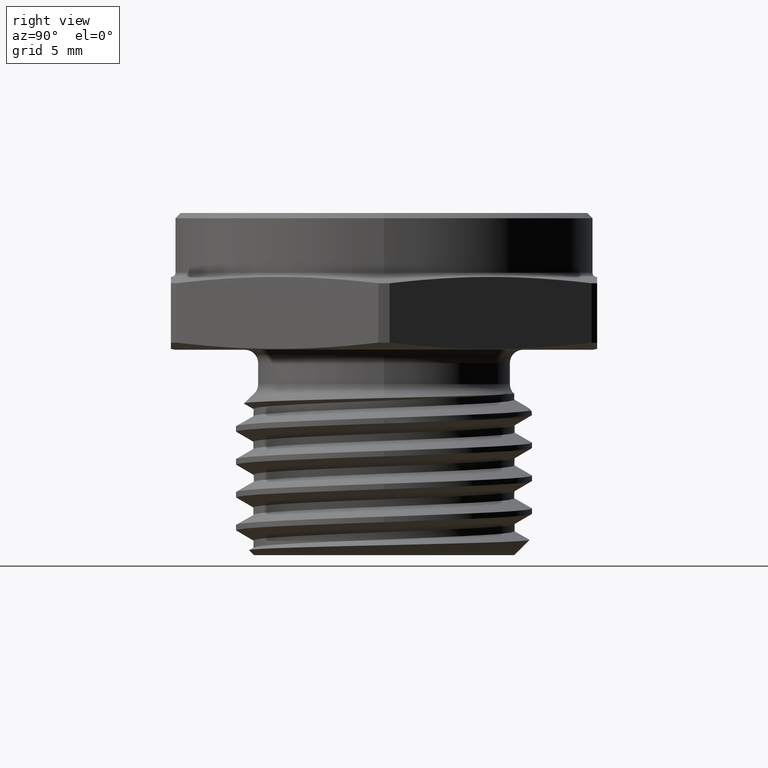
[diagram: clean part render]
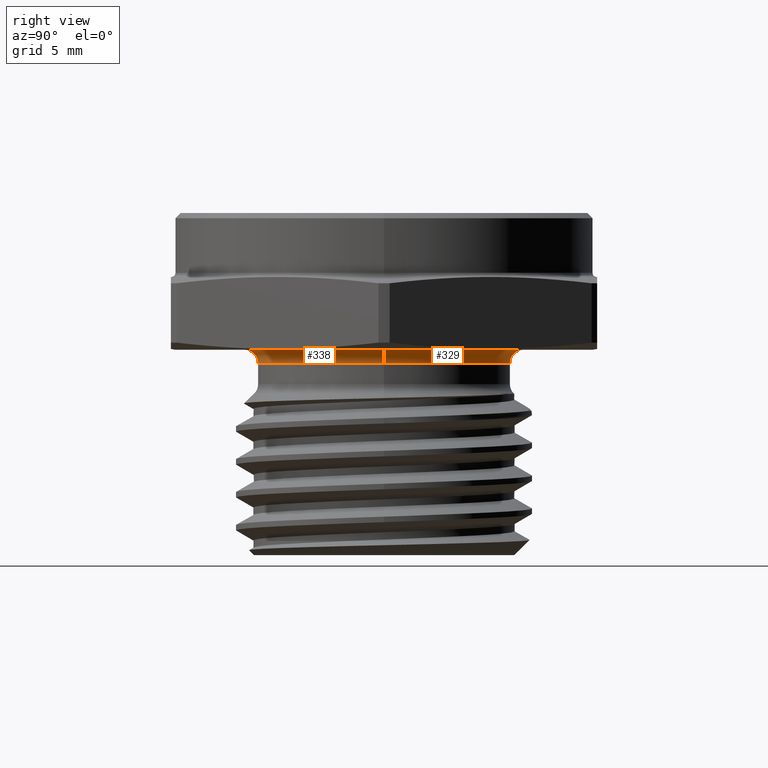
[diagram: same view with one multi-face feature highlighted, each face labeled with its STEP entity id]
A machine part, right view. The highlighted faces form ONE feature: a constant-radius fillet chain: 2 tangent blend faces with common blend radius 0.635 mm. The faces share edges in the B-rep.
Their STEP definitions:
[1] entity #329 (Torus):
#48 = TOROIDAL_SURFACE ( 'NONE', #2282, 0.2655000000000000100, 0.02500000000000000500 ) ;
#49 = FACE_OUTER_BOUND ( 'NONE', #280, .T. ) ;
#69 = CIRCLE ( 'NONE', #166, 0.02500000000000000500 ) ;
#162 = AXIS2_PLACEMENT_3D ( 'NONE', #942, #943, #944 ) ;
#164 = AXIS2_PLACEMENT_3D ( 'NONE', #948, #949, #950 ) ;
#166 = AXIS2_PLACEMENT_3D ( 'NONE', #956, #957, #958 ) ;
#184 = AXIS2_PLACEMENT_3D ( 'NONE', #1443, #1444, #1445 ) ;
#245 = VERTEX_POINT ( 'NONE', #2724 ) ;
#252 = VERTEX_POINT ( 'NONE', #2719 ) ;
#280 = EDGE_LOOP ( 'NONE', ( #2780, #2781, #2782, #2783 ) ) ;
#329 = ADVANCED_FACE ( 'NONE', ( #49 ), #48, .F. ) ;
#364 = VERTEX_POINT ( 'NONE', #725 ) ;
#417 = CIRCLE ( 'NONE', #162, 0.2404999999999999900 ) ;
#422 = CIRCLE ( 'NONE', #164, 0.02500000000000001200 ) ;
#725 = CARTESIAN_POINT ( 'NONE',  ( 0.2404999999999999900, 0.0000000000000000000, -0.02500000000000004000 ) ) ;
#942 = CARTESIAN_POINT ( 'NONE',  ( 0.0000000000000000000, 0.0000000000000000000, -0.02500000000000004000 ) ) ;
#943 = DIRECTION ( 'NONE',  ( -0.0000000000000000000, -0.0000000000000000000, 1.000000000000000000 ) ) ;
#944 = DIRECTION ( 'NONE',  ( 1.000000000000000000, 0.0000000000000000000, 0.0000000000000000000 ) ) ;
#948 = CARTESIAN_POINT ( 'NONE',  ( 0.2655000000000000100, 0.0000000000000000000, -0.02500000000000003600 ) ) ;
#949 = DIRECTION ( 'NONE',  ( 0.0000000000000000000, -1.000000000000000000, 0.0000000000000000000 ) ) ;
#950 = DIRECTION ( 'NONE',  ( 0.0000000000000000000, 0.0000000000000000000, -1.000000000000000000 ) ) ;
#956 = CARTESIAN_POINT ( 'NONE',  ( -0.2655000000000000100, 3.251437251736223000E-017, -0.02500000000000003600 ) ) ;
#957 = DIRECTION ( 'NONE',  ( 1.224646799147353200E-016, 1.000000000000000000, 0.0000000000000000000 ) ) ;
#958 = DIRECTION ( 'NONE',  ( -1.000000000000000000, 1.224646799147351700E-016, 0.0000000000000000000 ) ) ;
#1113 = CARTESIAN_POINT ( 'NONE',  ( -0.2655000000000000100, 3.251437251736223000E-017, -3.201384367575308300E-017 ) ) ;
#1443 = CARTESIAN_POINT ( 'NONE',  ( 0.0000000000000000000, 0.0000000000000000000, -3.414809992080329000E-017 ) ) ;
#1444 = DIRECTION ( 'NONE',  ( -0.0000000000000000000, -0.0000000000000000000, 1.000000000000000000 ) ) ;
#1445 = DIRECTION ( 'NONE',  ( 1.000000000000000000, 0.0000000000000000000, 0.0000000000000000000 ) ) ;
#2115 = CIRCLE ( 'NONE', #184, 0.2655000000000000100 ) ;
#2151 = EDGE_CURVE ( 'NONE', #364, #252, #417, .T. ) ;
#2154 = EDGE_CURVE ( 'NONE', #245, #364, #422, .T. ) ;
#2156 = EDGE_CURVE ( 'NONE', #2475, #252, #69, .T. ) ;
#2212 = EDGE_CURVE ( 'NONE', #245, #2475, #2115, .T. ) ;
#2282 = AXIS2_PLACEMENT_3D ( 'NONE', #2628, #2630, #2625 ) ;
#2475 = VERTEX_POINT ( 'NONE', #1113 ) ;
#2625 = DIRECTION ( 'NONE',  ( 1.000000000000000000, 0.0000000000000000000, 0.0000000000000000000 ) ) ;
#2628 = CARTESIAN_POINT ( 'NONE',  ( 0.0000000000000000000, 0.0000000000000000000, -0.02500000000000003600 ) ) ;
#2630 = DIRECTION ( 'NONE',  ( -0.0000000000000000000, -0.0000000000000000000, 1.000000000000000000 ) ) ;
#2719 = CARTESIAN_POINT ( 'NONE',  ( -0.2404999999999999900, 2.945275551949384100E-017, -0.02500000000000004000 ) ) ;
#2724 = CARTESIAN_POINT ( 'NONE',  ( 0.2655000000000000100, 0.0000000000000000000, -3.201384367575308300E-017 ) ) ;
#2780 = ORIENTED_EDGE ( 'NONE', *, *, #2156, .F. ) ;
#2781 = ORIENTED_EDGE ( 'NONE', *, *, #2212, .F. ) ;
#2782 = ORIENTED_EDGE ( 'NONE', *, *, #2154, .T. ) ;
#2783 = ORIENTED_EDGE ( 'NONE', *, *, #2151, .T. ) ;
[2] entity #338 (Torus):
#60 = TOROIDAL_SURFACE ( 'NONE', #136, 0.2655000000000000100, 0.02500000000000000500 ) ;
#65 = CIRCLE ( 'NONE', #167, 0.2655000000000000100 ) ;
#67 = FACE_OUTER_BOUND ( 'NONE', #2765, .T. ) ;
#69 = CIRCLE ( 'NONE', #166, 0.02500000000000000500 ) ;
#122 = ORIENTED_EDGE ( 'NONE', *, *, #2157, .F. ) ;
#123 = ORIENTED_EDGE ( 'NONE', *, *, #2156, .T. ) ;
#124 = ORIENTED_EDGE ( 'NONE', *, *, #2155, .T. ) ;
#125 = ORIENTED_EDGE ( 'NONE', *, *, #2154, .F. ) ;
#136 = AXIS2_PLACEMENT_3D ( 'NONE', #714, #713, #716 ) ;
#164 = AXIS2_PLACEMENT_3D ( 'NONE', #948, #949, #950 ) ;
#165 = AXIS2_PLACEMENT_3D ( 'NONE', #952, #953, #954 ) ;
#166 = AXIS2_PLACEMENT_3D ( 'NONE', #956, #957, #958 ) ;
#167 = AXIS2_PLACEMENT_3D ( 'NONE', #960, #961, #962 ) ;
#245 = VERTEX_POINT ( 'NONE', #2724 ) ;
#252 = VERTEX_POINT ( 'NONE', #2719 ) ;
#338 = ADVANCED_FACE ( 'NONE', ( #67 ), #60, .F. ) ;
#364 = VERTEX_POINT ( 'NONE', #725 ) ;
#422 = CIRCLE ( 'NONE', #164, 0.02500000000000001200 ) ;
#423 = CIRCLE ( 'NONE', #165, 0.2404999999999999900 ) ;
#713 = DIRECTION ( 'NONE',  ( -0.0000000000000000000, -0.0000000000000000000, 1.000000000000000000 ) ) ;
#714 = CARTESIAN_POINT ( 'NONE',  ( 0.0000000000000000000, 0.0000000000000000000, -0.02500000000000003600 ) ) ;
#716 = DIRECTION ( 'NONE',  ( 1.000000000000000000, 0.0000000000000000000, 0.0000000000000000000 ) ) ;
#725 = CARTESIAN_POINT ( 'NONE',  ( 0.2404999999999999900, 0.0000000000000000000, -0.02500000000000004000 ) ) ;
#948 = CARTESIAN_POINT ( 'NONE',  ( 0.2655000000000000100, 0.0000000000000000000, -0.02500000000000003600 ) ) ;
#949 = DIRECTION ( 'NONE',  ( 0.0000000000000000000, -1.000000000000000000, 0.0000000000000000000 ) ) ;
#950 = DIRECTION ( 'NONE',  ( 0.0000000000000000000, 0.0000000000000000000, -1.000000000000000000 ) ) ;
#952 = CARTESIAN_POINT ( 'NONE',  ( 0.0000000000000000000, 0.0000000000000000000, -0.02500000000000004000 ) ) ;
#953 = DIRECTION ( 'NONE',  ( -0.0000000000000000000, -0.0000000000000000000, 1.000000000000000000 ) ) ;
#954 = DIRECTION ( 'NONE',  ( 1.000000000000000000, 0.0000000000000000000, 0.0000000000000000000 ) ) ;
#956 = CARTESIAN_POINT ( 'NONE',  ( -0.2655000000000000100, 3.251437251736223000E-017, -0.02500000000000003600 ) ) ;
#957 = DIRECTION ( 'NONE',  ( 1.224646799147353200E-016, 1.000000000000000000, 0.0000000000000000000 ) ) ;
#958 = DIRECTION ( 'NONE',  ( -1.000000000000000000, 1.224646799147351700E-016, 0.0000000000000000000 ) ) ;
#960 = CARTESIAN_POINT ( 'NONE',  ( 0.0000000000000000000, 0.0000000000000000000, -3.414809992080329000E-017 ) ) ;
#961 = DIRECTION ( 'NONE',  ( -0.0000000000000000000, -0.0000000000000000000, 1.000000000000000000 ) ) ;
#962 = DIRECTION ( 'NONE',  ( 1.000000000000000000, 0.0000000000000000000, 0.0000000000000000000 ) ) ;
#1113 = CARTESIAN_POINT ( 'NONE',  ( -0.2655000000000000100, 3.251437251736223000E-017, -3.201384367575308300E-017 ) ) ;
#2154 = EDGE_CURVE ( 'NONE', #245, #364, #422, .T. ) ;
#2155 = EDGE_CURVE ( 'NONE', #252, #364, #423, .T. ) ;
#2156 = EDGE_CURVE ( 'NONE', #2475, #252, #69, .T. ) ;
#2157 = EDGE_CURVE ( 'NONE', #2475, #245, #65, .T. ) ;
#2475 = VERTEX_POINT ( 'NONE', #1113 ) ;
#2719 = CARTESIAN_POINT ( 'NONE',  ( -0.2404999999999999900, 2.945275551949384100E-017, -0.02500000000000004000 ) ) ;
#2724 = CARTESIAN_POINT ( 'NONE',  ( 0.2655000000000000100, 0.0000000000000000000, -3.201384367575308300E-017 ) ) ;
#2765 = EDGE_LOOP ( 'NONE', ( #122, #123, #124, #125 ) ) ;